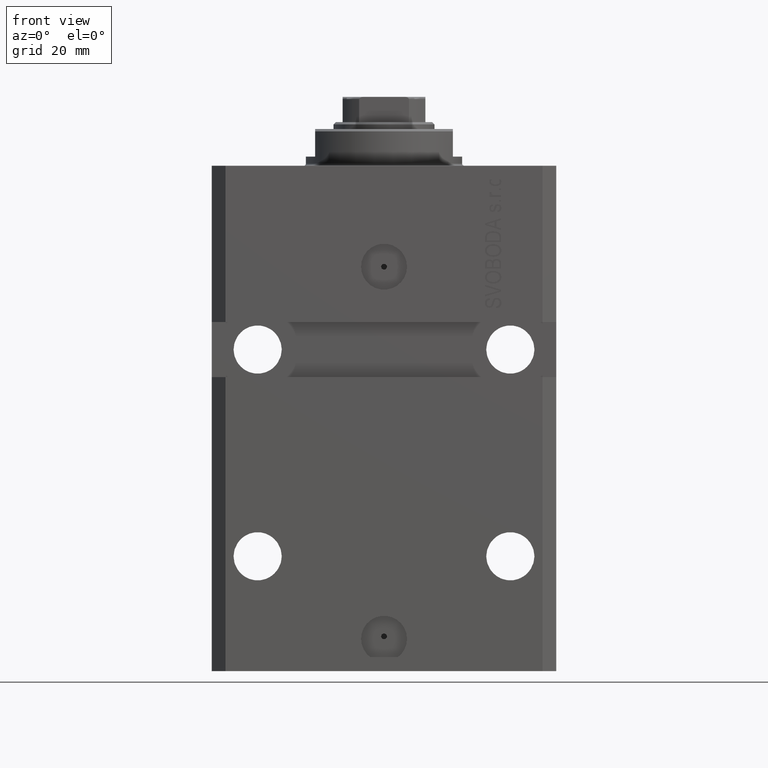
[diagram: clean part render]
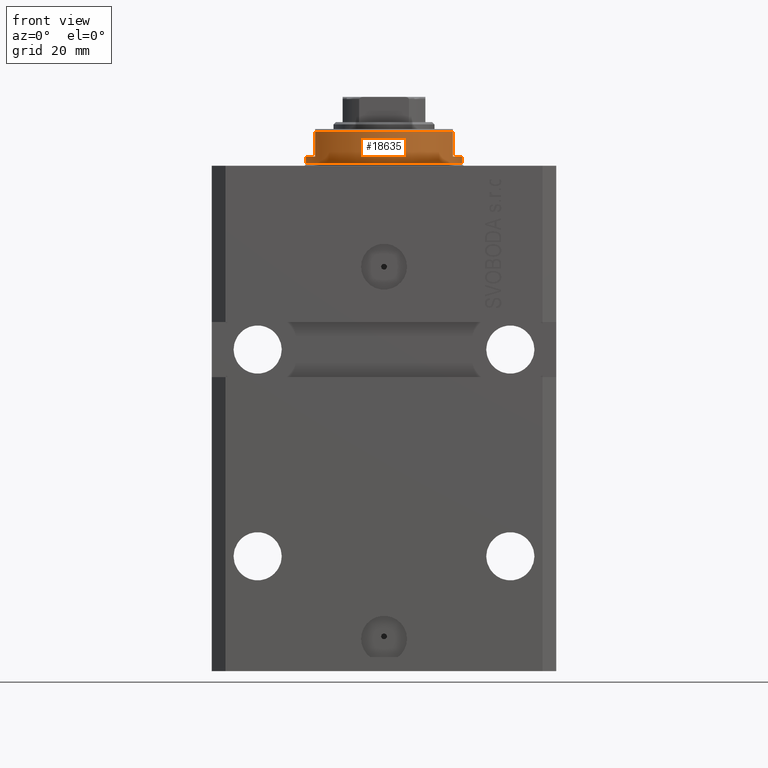
[diagram: same view with one face highlighted and labeled with its STEP entity id]
A machine part, front view. The second image highlights one B-rep face of the part: STEP entity #18635.
In plain terms, the highlighted cylindrical surface (partial cylindrical patch) has radius 17 mm, axis along (0, 0, -1).
Its self-contained STEP definition (entity closure, byte-faithful):
#753 = EDGE_CURVE ( 'NONE', #19919, #4318, #38212, .T. ) ;
#1329 = CARTESIAN_POINT ( 'NONE',  ( -17.00000000000000000, 2.081899558550500280E-15, -2.000000000000000000 ) ) ;
#1784 = ORIENTED_EDGE ( 'NONE', *, *, #35683, .T. ) ;
#3860 = LINE ( 'NONE', #32830, #20995 ) ;
#4278 = CIRCLE ( 'NONE', #46359, 17.00000000000000000 ) ;
#4318 = VERTEX_POINT ( 'NONE', #28757 ) ;
#5103 = VERTEX_POINT ( 'NONE', #11556 ) ;
#5374 = ORIENTED_EDGE ( 'NONE', *, *, #23685, .F. ) ;
#5901 = CYLINDRICAL_SURFACE ( 'NONE', #8971, 17.00000000000000000 ) ;
#6819 = DIRECTION ( 'NONE',  ( -1.000000000000000000, 0.000000000000000000, 0.000000000000000000 ) ) ;
#8971 = AXIS2_PLACEMENT_3D ( 'NONE', #46818, #31507, #46597 ) ;
#9023 = EDGE_LOOP ( 'NONE', ( #14499, #33527, #1784, #20606, #33670, #5374, #35848, #38973 ) ) ;
#10731 = EDGE_CURVE ( 'NONE', #34484, #31942, #3860, .T. ) ;
#11556 = CARTESIAN_POINT ( 'NONE',  ( -15.00000000000000000, -8.000000000000001776, -7.500000000000007105 ) ) ;
#11905 = CARTESIAN_POINT ( 'NONE',  ( 15.00000000000000000, -8.000000000000001776, -8.000000000000000000 ) ) ;
#11966 = VERTEX_POINT ( 'NONE', #35265 ) ;
#12141 = DIRECTION ( 'NONE',  ( 0.000000000000000000, 0.000000000000000000, -1.000000000000000000 ) ) ;
#14499 = ORIENTED_EDGE ( 'NONE', *, *, #41156, .F. ) ;
#14943 = DIRECTION ( 'NONE',  ( 0.000000000000000000, 0.000000000000000000, 1.000000000000000000 ) ) ;
#15068 = DIRECTION ( 'NONE',  ( -0.000000000000000000, -0.000000000000000000, 1.000000000000000000 ) ) ;
#18635 = ADVANCED_FACE ( 'NONE', ( #32209 ), #5901, .T. ) ;
#19234 = CARTESIAN_POINT ( 'NONE',  ( 0.000000000000000000, 0.000000000000000000, -7.500000000000007105 ) ) ;
#19467 = DIRECTION ( 'NONE',  ( -1.000000000000000000, 0.000000000000000000, 0.000000000000000000 ) ) ;
#19919 = VERTEX_POINT ( 'NONE', #36467 ) ;
#20606 = ORIENTED_EDGE ( 'NONE', *, *, #35773, .T. ) ;
#20660 = DIRECTION ( 'NONE',  ( 0.000000000000000000, 0.000000000000000000, -1.000000000000000000 ) ) ;
#20995 = VECTOR ( 'NONE', #44076, 1000.000000000000000 ) ;
#22091 = CIRCLE ( 'NONE', #32020, 17.00000000000000000 ) ;
#22725 = LINE ( 'NONE', #33483, #24146 ) ;
#22808 = CIRCLE ( 'NONE', #31992, 17.00000000000000000 ) ;
#23685 = EDGE_CURVE ( 'NONE', #34484, #19919, #22808, .T. ) ;
#24146 = VECTOR ( 'NONE', #15068, 1000.000000000000000 ) ;
#24469 = EDGE_CURVE ( 'NONE', #31942, #43992, #22091, .T. ) ;
#24892 = CARTESIAN_POINT ( 'NONE',  ( 17.00000000000000000, 0.000000000000000000, -0.5000000000000004441 ) ) ;
#26566 = DIRECTION ( 'NONE',  ( 1.000000000000000000, 0.000000000000000000, 0.000000000000000000 ) ) ;
#26787 = CARTESIAN_POINT ( 'NONE',  ( 0.000000000000000000, 0.000000000000000000, -2.000000000000000000 ) ) ;
#27263 = DIRECTION ( 'NONE',  ( -0.000000000000000000, -0.000000000000000000, -1.000000000000000000 ) ) ;
#27805 = CIRCLE ( 'NONE', #39231, 17.00000000000000000 ) ;
#28605 = LINE ( 'NONE', #29309, #34644 ) ;
#28757 = CARTESIAN_POINT ( 'NONE',  ( 15.00000000000000000, -8.000000000000001776, -7.500000000000007105 ) ) ;
#29309 = CARTESIAN_POINT ( 'NONE',  ( -15.00000000000000000, -8.000000000000001776, -8.000000000000000000 ) ) ;
#30493 = DIRECTION ( 'NONE',  ( -1.000000000000000000, 0.000000000000000000, 0.000000000000000000 ) ) ;
#30533 = CARTESIAN_POINT ( 'NONE',  ( 17.00000000000000000, 0.000000000000000000, -2.000000000000000000 ) ) ;
#30953 = CARTESIAN_POINT ( 'NONE',  ( 0.000000000000000000, 0.000000000000000000, -2.000000000000000000 ) ) ;
#31507 = DIRECTION ( 'NONE',  ( -0.000000000000000000, -0.000000000000000000, 1.000000000000000000 ) ) ;
#31942 = VERTEX_POINT ( 'NONE', #24892 ) ;
#31992 = AXIS2_PLACEMENT_3D ( 'NONE', #26787, #41361, #6819 ) ;
#32020 = AXIS2_PLACEMENT_3D ( 'NONE', #33962, #27263, #26566 ) ;
#32209 = FACE_OUTER_BOUND ( 'NONE', #9023, .T. ) ;
#32830 = CARTESIAN_POINT ( 'NONE',  ( 17.00000000000000000, 0.000000000000000000, -8.000000000000000000 ) ) ;
#33483 = CARTESIAN_POINT ( 'NONE',  ( -17.00000000000000000, 2.081899558550500280E-15, -8.000000000000000000 ) ) ;
#33527 = ORIENTED_EDGE ( 'NONE', *, *, #41880, .F. ) ;
#33670 = ORIENTED_EDGE ( 'NONE', *, *, #753, .F. ) ;
#33962 = CARTESIAN_POINT ( 'NONE',  ( 0.000000000000000000, 0.000000000000000000, -0.5000000000000004441 ) ) ;
#34484 = VERTEX_POINT ( 'NONE', #30533 ) ;
#34644 = VECTOR ( 'NONE', #47269, 1000.000000000000000 ) ;
#35265 = CARTESIAN_POINT ( 'NONE',  ( -14.99999999999999645, -8.000000000000003553, -2.000000000000000000 ) ) ;
#35683 = EDGE_CURVE ( 'NONE', #11966, #5103, #28605, .T. ) ;
#35773 = EDGE_CURVE ( 'NONE', #5103, #4318, #27805, .T. ) ;
#35848 = ORIENTED_EDGE ( 'NONE', *, *, #10731, .T. ) ;
#36467 = CARTESIAN_POINT ( 'NONE',  ( 14.99999999999999645, -8.000000000000003553, -2.000000000000000000 ) ) ;
#38212 = LINE ( 'NONE', #11905, #44462 ) ;
#38973 = ORIENTED_EDGE ( 'NONE', *, *, #24469, .T. ) ;
#39231 = AXIS2_PLACEMENT_3D ( 'NONE', #19234, #14943, #19467 ) ;
#41156 = EDGE_CURVE ( 'NONE', #44141, #43992, #22725, .T. ) ;
#41361 = DIRECTION ( 'NONE',  ( 0.000000000000000000, 0.000000000000000000, -1.000000000000000000 ) ) ;
#41880 = EDGE_CURVE ( 'NONE', #11966, #44141, #4278, .T. ) ;
#43992 = VERTEX_POINT ( 'NONE', #45972 ) ;
#44076 = DIRECTION ( 'NONE',  ( -0.000000000000000000, -0.000000000000000000, 1.000000000000000000 ) ) ;
#44141 = VERTEX_POINT ( 'NONE', #1329 ) ;
#44462 = VECTOR ( 'NONE', #12141, 1000.000000000000000 ) ;
#45972 = CARTESIAN_POINT ( 'NONE',  ( -17.00000000000000000, 2.081899558550500280E-15, -0.5000000000000004441 ) ) ;
#46359 = AXIS2_PLACEMENT_3D ( 'NONE', #30953, #20660, #30493 ) ;
#46597 = DIRECTION ( 'NONE',  ( 1.000000000000000000, 0.000000000000000000, 0.000000000000000000 ) ) ;
#46818 = CARTESIAN_POINT ( 'NONE',  ( 0.000000000000000000, 0.000000000000000000, -8.000000000000000000 ) ) ;
#47269 = DIRECTION ( 'NONE',  ( 0.000000000000000000, 0.000000000000000000, -1.000000000000000000 ) ) ;